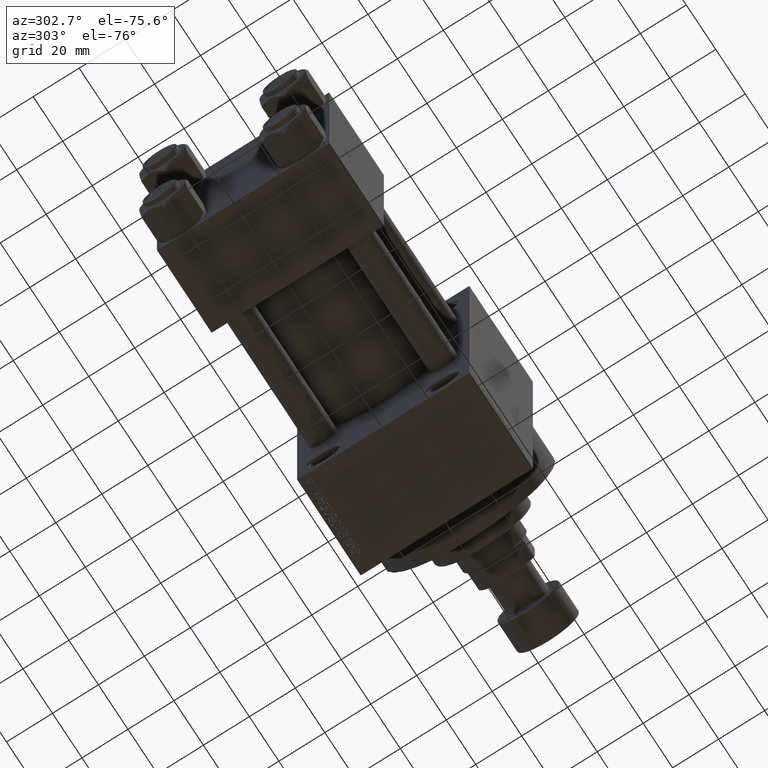
[diagram: clean part render]
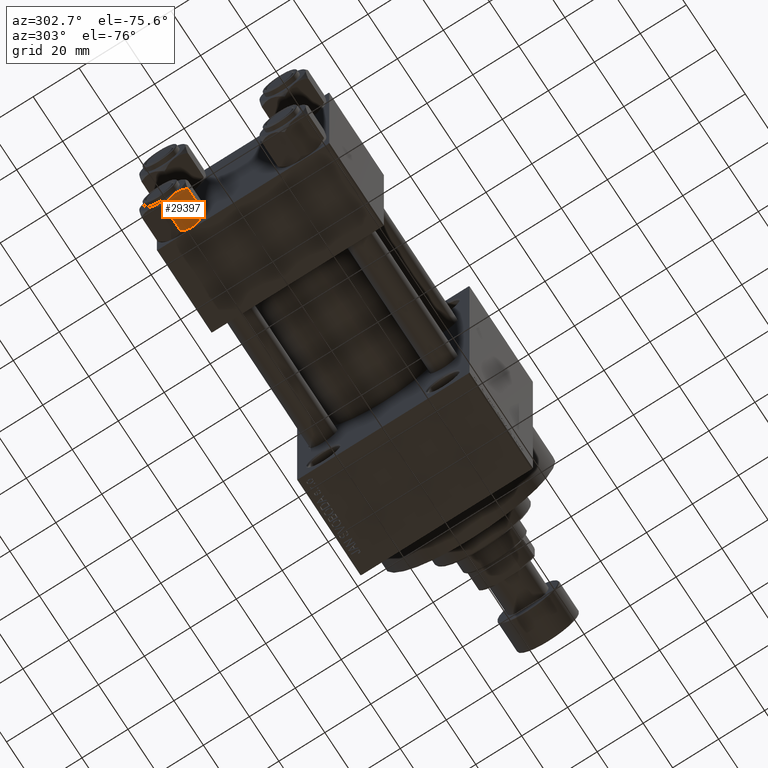
[diagram: same view with one face highlighted and labeled with its STEP entity id]
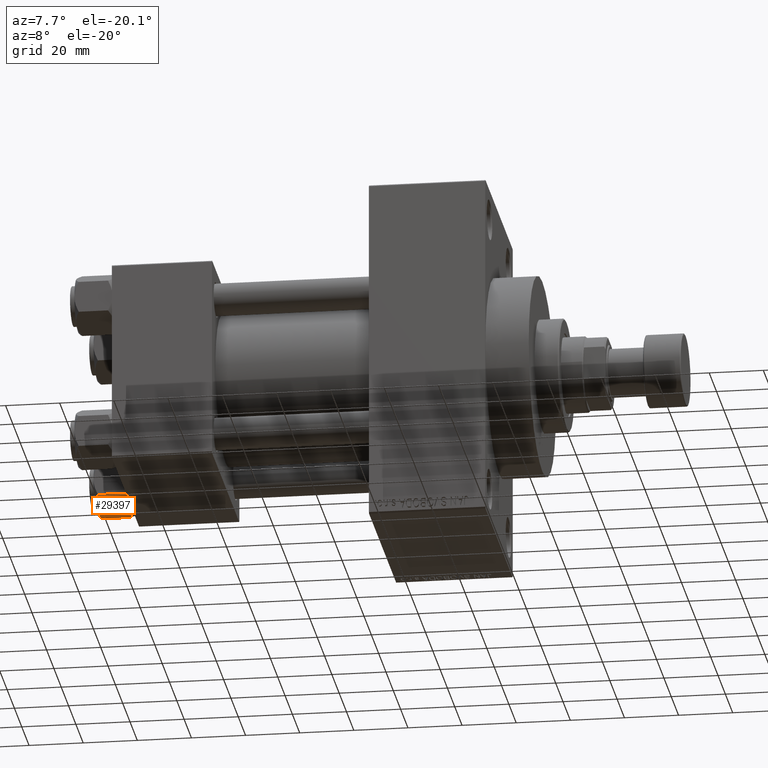
[diagram: same view with one face highlighted and labeled with its STEP entity id]
A machine part, auxiliary view. The second image highlights one B-rep face of the part: STEP entity #29397.
A second angle (auxiliary view) of the same face is appended — the face is thin or edge-on in the first view.
In plain terms, the highlighted planar face has unit normal (0, 0.5, 0.866).
Its self-contained STEP definition (entity closure, byte-faithful):
#205 = CARTESIAN_POINT ( 'NONE',  ( -11.61999999999999922, 6.270720075510426383E-15, -12.44321519197518988 ) ) ;
#443 = EDGE_CURVE ( 'NONE', #43668, #26997, #33372, .T. ) ;
#565 = B_SPLINE_CURVE_WITH_KNOTS ( 'NONE', 3,
 ( #22071, #12167, #33860, #14827, #44938, #15067 ),
 .UNSPECIFIED., .F., .F.,
 ( 4, 2, 4 ),
 ( 0.006022845781655586372, 0.009013049135303635023, 0.01200325248895168367 ),
 .UNSPECIFIED. ) ;
#754 = CARTESIAN_POINT ( 'NONE',  ( -5.810000000000000497, -10.06321519197517844, -14.00000000000000000 ) ) ;
#1263 = CARTESIAN_POINT ( 'NONE',  ( -9.227666995912100489, -4.143642311704120118, -0.03994118060690279165 ) ) ;
#3657 = CARTESIAN_POINT ( 'NONE',  ( -11.61999999999999922, 6.270720075510426383E-15, -12.44321519197518988 ) ) ;
#4411 = CARTESIAN_POINT ( 'NONE',  ( -9.974696630283190757, -2.849749030213787115, -0.3002673809867329457 ) ) ;
#4888 = CARTESIAN_POINT ( 'NONE',  ( -9.729165168613654657, -3.275021996682076608, -0.1903979688073365595 ) ) ;
#5909 = EDGE_CURVE ( 'NONE', #41866, #26997, #565, .T. ) ;
#7786 = CARTESIAN_POINT ( 'NONE',  ( -8.715000000000006963, -5.031607595987586556, 0.000000000000000000 ) ) ;
#8238 = DIRECTION ( 'NONE',  ( 0.8660254037844390407, 0.4999999999999995004, 0.000000000000000000 ) ) ;
#9163 = CARTESIAN_POINT ( 'NONE',  ( -8.715000000000006963, -5.031607595987586556, -14.00000000000000000 ) ) ;
#9205 = CARTESIAN_POINT ( 'NONE',  ( -8.202333004087902779, -5.919572880271047666, -13.96005881939309745 ) ) ;
#9436 = CARTESIAN_POINT ( 'NONE',  ( -8.715000000000006963, -5.031607595987586556, -14.00000000000000000 ) ) ;
#10742 = EDGE_CURVE ( 'NONE', #47368, #41866, #41046, .T. ) ;
#11116 = CARTESIAN_POINT ( 'NONE',  ( -8.715000000000006963, -5.031607595987586556, -14.00000000000000000 ) ) ;
#11645 = LINE ( 'NONE', #44660, #38127 ) ;
#12167 = CARTESIAN_POINT ( 'NONE',  ( -8.209704053696567527, -5.906805847843720869, 6.159623592433269699E-15 ) ) ;
#13036 = CARTESIAN_POINT ( 'NONE',  ( -7.700834831386346835, -6.788193195293090731, -13.80960203119266438 ) ) ;
#14251 = EDGE_LOOP ( 'NONE', ( #45203, #21785, #28224, #45210, #19172, #28304 ) ) ;
#14827 = CARTESIAN_POINT ( 'NONE',  ( -6.733375043383495573, -8.463882702393842550, -0.7114554706434480513 ) ) ;
#15029 = DIRECTION ( 'NONE',  ( -0.000000000000000000, -0.000000000000000000, 1.000000000000000000 ) ) ;
#15067 = CARTESIAN_POINT ( 'NONE',  ( -5.810000000000000497, -10.06321519197517844, -1.556784808024813893 ) ) ;
#16642 = B_SPLINE_CURVE_WITH_KNOTS ( 'NONE', 3,
 ( #24364, #31368, #46064, #39302, #13036, #9205, #24604, #9436 ),
 .UNSPECIFIED., .F., .F.,
 ( 4, 2, 2, 4 ),
 ( 2.544312114906334931E-07, 0.003011550106433543393, 0.004517197944044570521, 0.006022845781655596781 ),
 .UNSPECIFIED. ) ;
#19172 = ORIENTED_EDGE ( 'NONE', *, *, #19900, .F. ) ;
#19191 = VERTEX_POINT ( 'NONE', #205 ) ;
#19339 = CARTESIAN_POINT ( 'NONE',  ( -10.69859855102500923, -1.595914123792257611, -0.7141438259524607313 ) ) ;
#19900 = EDGE_CURVE ( 'NONE', #19191, #47368, #11645, .T. ) ;
#21496 = CARTESIAN_POINT ( 'NONE',  ( -9.716999946243698005, -3.296092779912219939, -13.84547602999602667 ) ) ;
#21785 = ORIENTED_EDGE ( 'NONE', *, *, #443, .T. ) ;
#22071 = CARTESIAN_POINT ( 'NONE',  ( -8.715000000000006963, -5.031607595987586556, 0.000000000000000000 ) ) ;
#24364 = CARTESIAN_POINT ( 'NONE',  ( -5.810000000000000497, -10.06321519197517844, -12.44321519197518633 ) ) ;
#24604 = CARTESIAN_POINT ( 'NONE',  ( -8.460569896449619876, -5.472293462311856871, -14.00000000000000888 ) ) ;
#25928 = CARTESIAN_POINT ( 'NONE',  ( -8.715000000000006963, -5.031607595987586556, 0.000000000000000000 ) ) ;
#26308 = FACE_OUTER_BOUND ( 'NONE', #14251, .T. ) ;
#26756 = CARTESIAN_POINT ( 'NONE',  ( -11.61999999999999922, 6.270720075409452187E-15, -1.556784808024810562 ) ) ;
#26892 = CARTESIAN_POINT ( 'NONE',  ( -5.810000000000000497, -10.06321519197517844, -1.556784808024813893 ) ) ;
#26997 = VERTEX_POINT ( 'NONE', #26892 ) ;
#27047 = CARTESIAN_POINT ( 'NONE',  ( -8.969430103550386946, -4.590921729663310025, 6.662949392646161370E-15 ) ) ;
#28224 = ORIENTED_EDGE ( 'NONE', *, *, #5909, .F. ) ;
#28304 = ORIENTED_EDGE ( 'NONE', *, *, #42771, .F. ) ;
#29397 = ADVANCED_FACE ( 'NONE', ( #26308 ), #40999, .F. ) ;
#29670 = CARTESIAN_POINT ( 'NONE',  ( -11.16498164529022219, -0.7881149087337223635, -12.89823354668505040 ) ) ;
#30338 = VECTOR ( 'NONE', #36757, 1000.000000000000000 ) ;
#31368 = CARTESIAN_POINT ( 'NONE',  ( -6.265545725125283738, -9.274186850887380373, -12.89876091710046779 ) ) ;
#32815 = CARTESIAN_POINT ( 'NONE',  ( -9.220295946303428636, -4.156409344131446026, -14.00000000000000711 ) ) ;
#33372 = LINE ( 'NONE', #40122, #30338 ) ;
#33860 = CARTESIAN_POINT ( 'NONE',  ( -7.713000053756304375, -6.767122412062951398, -0.1545239700039803266 ) ) ;
#35210 = B_SPLINE_CURVE_WITH_KNOTS ( 'NONE', 3,
 ( #11116, #32815, #21496, #44124, #29670, #3657 ),
 .UNSPECIFIED., .F., .F.,
 ( 4, 2, 4 ),
 ( 0.006022845781655596781, 0.009013049135303641962, 0.01200325248895168714 ),
 .UNSPECIFIED. ) ;
#35213 = DIRECTION ( 'NONE',  ( -0.4999999999999994449, 0.8660254037844389297, 0.000000000000000000 ) ) ;
#35665 = CARTESIAN_POINT ( 'NONE',  ( -5.810000000000000497, -10.06321519197517844, -12.44321519197518633 ) ) ;
#36064 = VERTEX_POINT ( 'NONE', #9163 ) ;
#36299 = AXIS2_PLACEMENT_3D ( 'NONE', #754, #8238, #35213 ) ;
#36757 = DIRECTION ( 'NONE',  ( -0.000000000000000000, -0.000000000000000000, 1.000000000000000000 ) ) ;
#36905 = EDGE_CURVE ( 'NONE', #43668, #36064, #16642, .T. ) ;
#37180 = CARTESIAN_POINT ( 'NONE',  ( -11.61999999999999922, 6.270720075409452187E-15, -1.556784808024810562 ) ) ;
#38127 = VECTOR ( 'NONE', #15029, 1000.000000000000000 ) ;
#39302 = CARTESIAN_POINT ( 'NONE',  ( -7.455303369716809847, -7.213466161761383333, -13.69973261901326644 ) ) ;
#40122 = CARTESIAN_POINT ( 'NONE',  ( -5.810000000000000497, -10.06321519197517844, -14.00000000000000000 ) ) ;
#40999 = PLANE ( 'NONE',  #36299 ) ;
#41046 = B_SPLINE_CURVE_WITH_KNOTS ( 'NONE', 3,
 ( #37180, #45366, #19339, #4411, #4888, #1263, #27047, #7786 ),
 .UNSPECIFIED., .F., .F.,
 ( 4, 2, 2, 4 ),
 ( 2.544312114893457383E-07, 0.003011550106433538623, 0.004517197944044561847, 0.006022845781655586372 ),
 .UNSPECIFIED. ) ;
#41866 = VERTEX_POINT ( 'NONE', #25928 ) ;
#42771 = EDGE_CURVE ( 'NONE', #36064, #19191, #35210, .T. ) ;
#43668 = VERTEX_POINT ( 'NONE', #35665 ) ;
#44124 = CARTESIAN_POINT ( 'NONE',  ( -10.69662495661650148, -1.599332489581326344, -13.28854452935655317 ) ) ;
#44660 = CARTESIAN_POINT ( 'NONE',  ( -11.61999999999999922, 6.288644352490894150E-15, -14.00000000000000000 ) ) ;
#44938 = CARTESIAN_POINT ( 'NONE',  ( -6.265018354709776638, -9.275100283241451748, -1.101766453314952043 ) ) ;
#45203 = ORIENTED_EDGE ( 'NONE', *, *, #36905, .F. ) ;
#45210 = ORIENTED_EDGE ( 'NONE', *, *, #10742, .F. ) ;
#45366 = CARTESIAN_POINT ( 'NONE',  ( -11.16445427487471420, -0.7890283410877914072, -1.101239082899528432 ) ) ;
#46064 = CARTESIAN_POINT ( 'NONE',  ( -6.731401448974989599, -8.467301068182909063, -13.28585617404753272 ) ) ;
#47368 = VERTEX_POINT ( 'NONE', #26756 ) ;